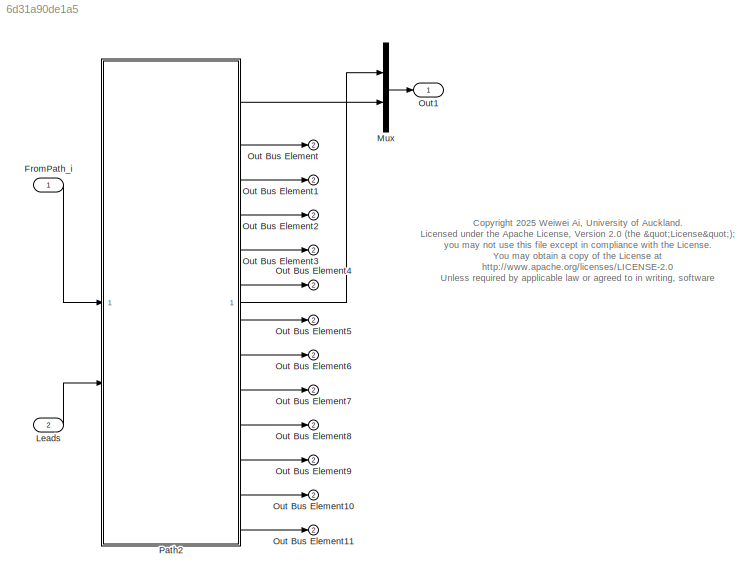
MODEL slx_6d31a90de1a5
KIND model
CONFIG AbsTol = auto
CONFIG EnableMultiTasking = off
CONFIG FixedStep = 0.0005
CONFIG MaxStep = auto
CONFIG MinStep = auto
CONFIG RelTol = 1e-3
CONFIG SampleTimeConstraint = Unconstrained
CONFIG SolverName = ode1
CONFIG StartTime = 0.0
CONFIG StopTime = 10.0
WORKSPACE source: mxarray member
WORKSPACE C: Simulink.Parameter (value not decoded)
WORKSPACE xi: Simulink.Parameter (value not decoded)
WORKSPACE xj: Simulink.Parameter (value not decoded)
WORKSPACE yi: Simulink.Parameter (value not decoded)
WORKSPACE yj: Simulink.Parameter (value not decoded)
WORKSPACE zi: Simulink.Parameter (value not decoded)
WORKSPACE zj: Simulink.Parameter (value not decoded)
BLOCK [Inport] FromPath_i
  BusOutputAsStruct = on
  OutDataTypeStr = Bus: Activation
  SamplingMode = Sample based
  SignalType = real
  VarSizeSig = No
BLOCK [Inport] Leads
  BusOutputAsStruct = on
  OutDataTypeStr = Bus: Lead_group
  Port = 2
  SamplingMode = Sample based
  SignalType = real
  VarSizeSig = No
BLOCK [Mux] Mux
  DisplayOption = bar
  Inputs = 2
BLOCK [Outport] Out Bus Element
  Port = 2
BLOCK [Outport] Out Bus Element1
  Port = 2
BLOCK [Outport] Out Bus Element10
  Port = 2
BLOCK [Outport] Out Bus Element11
  Port = 2
BLOCK [Outport] Out Bus Element2
  Port = 2
BLOCK [Outport] Out Bus Element3
  Port = 2
BLOCK [Outport] Out Bus Element4
  Port = 2
BLOCK [Outport] Out Bus Element5
  Port = 2
BLOCK [Outport] Out Bus Element6
  Port = 2
BLOCK [Outport] Out Bus Element7
  Port = 2
BLOCK [Outport] Out Bus Element8
  Port = 2
BLOCK [Outport] Out Bus Element9
  Port = 2
BLOCK [Outport] Out1
  SignalName = EGM_i
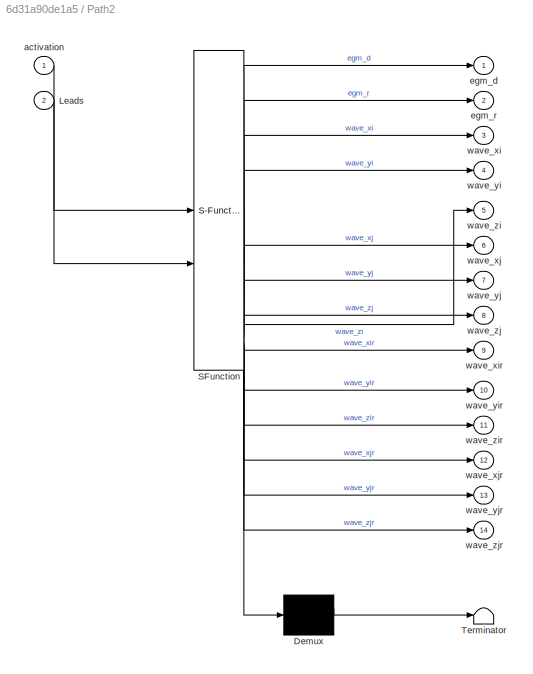
BLOCK [SubSystem] Path2
  ErrorFcn = Stateflow.Translate.translate
  PermitHierarchicalResolution = ExplicitOnly
  SFBlockType = Chart
  TreatAsAtomicUnit = on
BLOCK [Demux] Path2/ Demux 
  Outputs = 1
BLOCK [S-Function] Path2/ SFunction 
  EnableBusSupport = on
  FunctionName = sf_sfun
  Parameters = C,xi,xj,yi,yj,zi,zj
  PortCounts = [2 15]
  SFcnIsStateOwnerBlock = off
  SFunctionDeploymentMode = off
  Tag = Stateflow S-Function 38
BLOCK [Terminator] Path2/ Terminator 
BLOCK [Inport] Path2/Leads
  Port = 2
BLOCK [Inport] Path2/activation
BLOCK [Outport] Path2/egm_d
BLOCK [Outport] Path2/egm_r
  Port = 2
BLOCK [Outport] Path2/wave_xi
  Port = 3
BLOCK [Outport] Path2/wave_xir
  Port = 9
BLOCK [Outport] Path2/wave_xj
  Port = 6
BLOCK [Outport] Path2/wave_xjr
  Port = 12
BLOCK [Outport] Path2/wave_yi
  Port = 4
BLOCK [Outport] Path2/wave_yir
  Port = 10
BLOCK [Outport] Path2/wave_yj
  Port = 7
BLOCK [Outport] Path2/wave_yjr
  Port = 13
BLOCK [Outport] Path2/wave_zi
  Port = 5
BLOCK [Outport] Path2/wave_zir
  Port = 11
BLOCK [Outport] Path2/wave_zj
  Port = 8
BLOCK [Outport] Path2/wave_zjr
  Port = 14
ANNOTATION (root): <copyright redacted>
LINE FromPath_i:1 -> Path2:1
LINE Leads:1 -> Path2:2
LINE Mux:1 -> Out1:1
LINE Path2:1 -> Mux:1
LINE Path2:10 -> Out Bus Element7:1
LINE Path2:11 -> Out Bus Element8:1
LINE Path2:12 -> Out Bus Element9:1
LINE Path2:13 -> Out Bus Element10:1
LINE Path2:14 -> Out Bus Element11:1
LINE Path2:2 -> Mux:2
LINE Path2:3 -> Out Bus Element:1
LINE Path2:4 -> Out Bus Element1:1
LINE Path2:5 -> Out Bus Element2:1
LINE Path2:6 -> Out Bus Element3:1
LINE Path2:7 -> Out Bus Element4:1
LINE Path2:8 -> Out Bus Element5:1
LINE Path2:9 -> Out Bus Element6:1
CHART Path2 states=15 transitions=13
  STATE_LABEL '[Potential_d,x11,y11,z11]  = EGM(cv1in,x1in,y1in,z1in,x2in,y2in,z2in,t1in,electrodein,Cin)'
  STATE_LABEL 'SCRIPT:\nfunction [Potential_d,x11,y11,z11]  = EGM(cv1in,x1in,y1in,z1in,x2in,y2in,z2in,t1in,electrodein,Cin)\n%#codegen\n% ==============================================================\n%  3D Discrete Moving Dipole Model (Longitudinal + Transversal)\n%\n%  The dipole moves from r1 = (x1,y1,z1) to r2 = (x2,y2,z2)\n%  with speed cv1in.\n%\n%  The sensed potential at electrode location r_p is:\n%\n%      V = L...<+3608ch>'
  STATE_LABEL 'EGM1'
  STATE_LABEL 'De_wave_i'
  STATE_LABEL 'Idle\nen:\negm_d_i=[0 0 0 0]; wave_xi=0; wave_yi=0; wave_zi=0;\n'
  STATE_LABEL 'Active\ndu:\n[egm_d_i,wave_xi,wave_yi,wave_zi]  = EGM(activation.cvi,xi,yi,zi,xj,yj,zj,activation.ti,Leads,C);\n'
  STATE_LABEL '[activation.ti~=0]'
  STATE_LABEL '[activation.ti==0]'
  STATE_LABEL 'De_wave_j'
  STATE_LABEL 'Idle\nen:\negm_d_j=[0 0 0 0]; wave_xj=0; wave_yj=0; wave_zj=0;\n'
  STATE_LABEL 'Active\ndu:\n[egm_d_j,wave_xj,wave_yj, wave_zj]  = EGM(activation.cvj,xj,yj,zj,xi,yi,zi,activation.tj,Leads,C);\n'
  STATE_LABEL '[activation.tj~=0]'
  STATE_LABEL '[activation.tj==0]'
  STATE_LABEL 'Re_wave_i'
  STATE_LABEL 'Idle\nen:\negm_r_i=[0 0 0 0]; wave_xir=0; wave_yir=0; wave_zir=0;'
  STATE_LABEL 'Active\ndu:\n[egm_r_i,wave_xir,wave_yir, wave_zir]  = EGM(activation.cvi,xi,yi,zi,xj,yj,zj,activation.tir,Leads,C);\n'
  STATE_LABEL '[activation.tir~=0]'
  STATE_LABEL '[activation.tir==0]'
  STATE_LABEL 'Re_wave_j'
  STATE_LABEL 'Active\ndu:\n[egm_r_j,wave_xjr,wave_yjr, wave_zjr]  = EGM(activation.cvj,xj,yj,zj,xi,yi,zi,activation.tjr,Leads,C);\n'
  STATE_LABEL 'Idle\nen:\negm_r_j=[0 0 0 0]; wave_xjr=0; wave_yjr=0; wave_zjr=0;\n'
  STATE_LABEL '[activation.tjr~=0]'
  STATE_LABEL '[activation.tjr==0]'
  STATE_LABEL "sum_egm\ndu:\negm_r = -egm_r_i.'-egm_r_j.';\negm_d = egm_d_i.'+egm_d_j.';\n"
  STATE_LABEL 'De_wave_i'
  STATE_LABEL 'Idle\nen:\negm_d_i=[0 0 0 0]; wave_xi=0; wave_yi=0; wave_zi=0;\n'
  STATE_LABEL 'Active\ndu:\n[egm_d_i,wave_xi,wave_yi,wave_zi]  = EGM(activation.cvi,xi,yi,zi,xj,yj,zj,activation.ti,Leads,C);\n'
  STATE_LABEL '[activation.ti~=0]'
  STATE_LABEL '[activation.ti==0]'
  STATE_LABEL 'Idle\nen:\negm_d_i=[0 0 0 0]; wave_xi=0; wave_yi=0; wave_zi=0;\n'
  STATE_LABEL 'Active\ndu:\n[egm_d_i,wave_xi,wave_yi,wave_zi]  = EGM(activation.cvi,xi,yi,zi,xj,yj,zj,activation.ti,Leads,C);\n'
  STATE_LABEL 'De_wave_j'
  STATE_LABEL 'Idle\nen:\negm_d_j=[0 0 0 0]; wave_xj=0; wave_yj=0; wave_zj=0;\n'
  STATE_LABEL 'Active\ndu:\n[egm_d_j,wave_xj,wave_yj, wave_zj]  = EGM(activation.cvj,xj,yj,zj,xi,yi,zi,activation.tj,Leads,C);\n'
  STATE_LABEL '[activation.tj~=0]'
  STATE_LABEL '[activation.tj==0]'
  STATE_LABEL 'Idle\nen:\negm_d_j=[0 0 0 0]; wave_xj=0; wave_yj=0; wave_zj=0;\n'
  STATE_LABEL 'Active\ndu:\n[egm_d_j,wave_xj,wave_yj, wave_zj]  = EGM(activation.cvj,xj,yj,zj,xi,yi,zi,activation.tj,Leads,C);\n'
  STATE_LABEL 'Re_wave_i'
  STATE_LABEL 'Idle\nen:\negm_r_i=[0 0 0 0]; wave_xir=0; wave_yir=0; wave_zir=0;'
CHART  states=0 transitions=0
